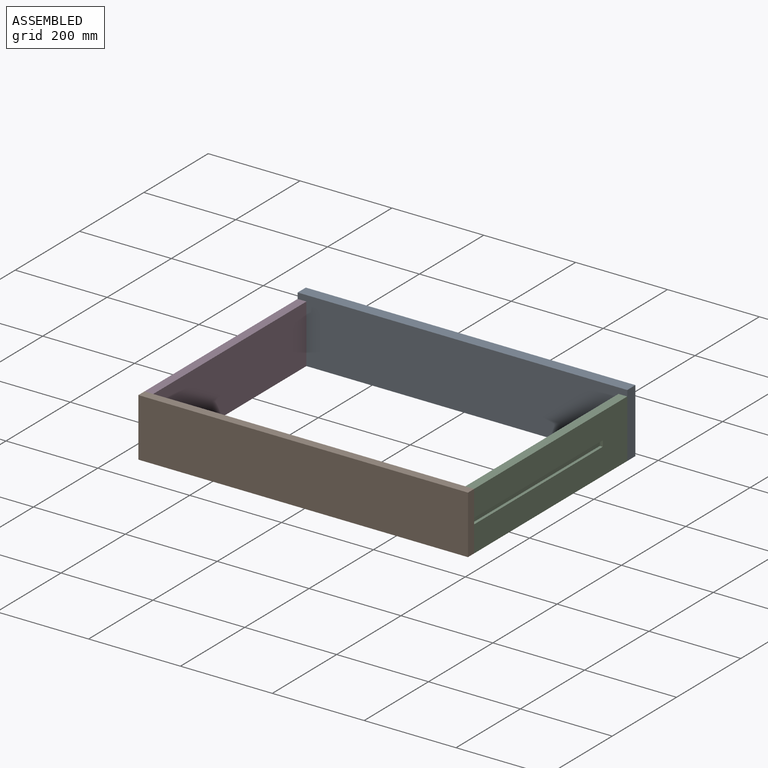
[diagram: assembled view]
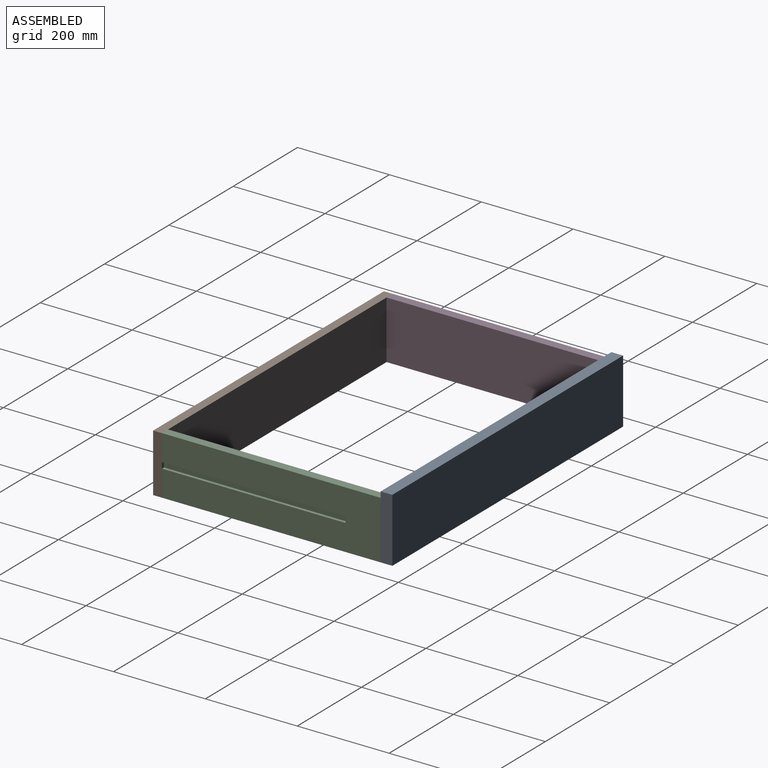
[diagram: assembled view, second angle]
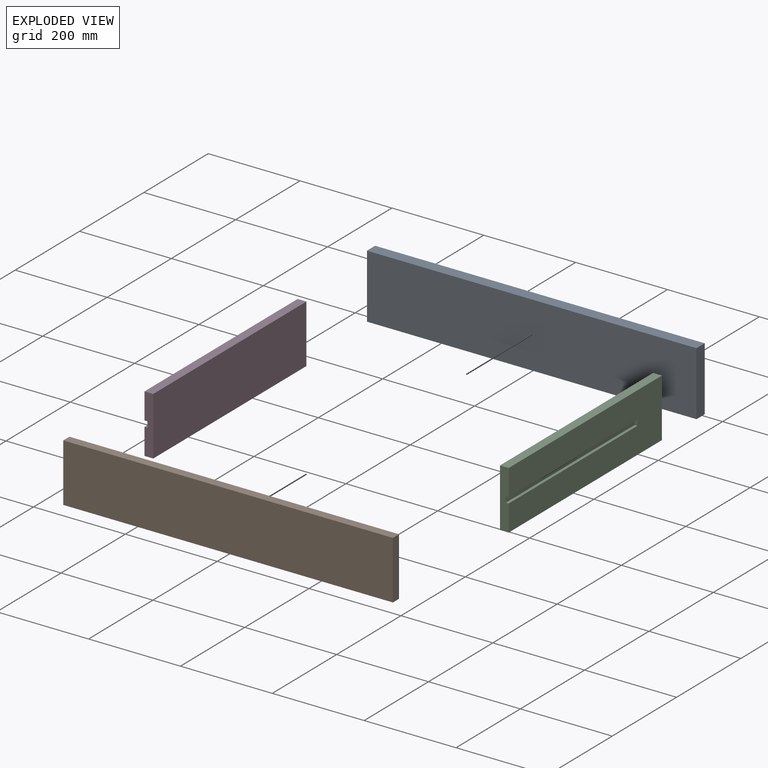
[diagram: exploded view]
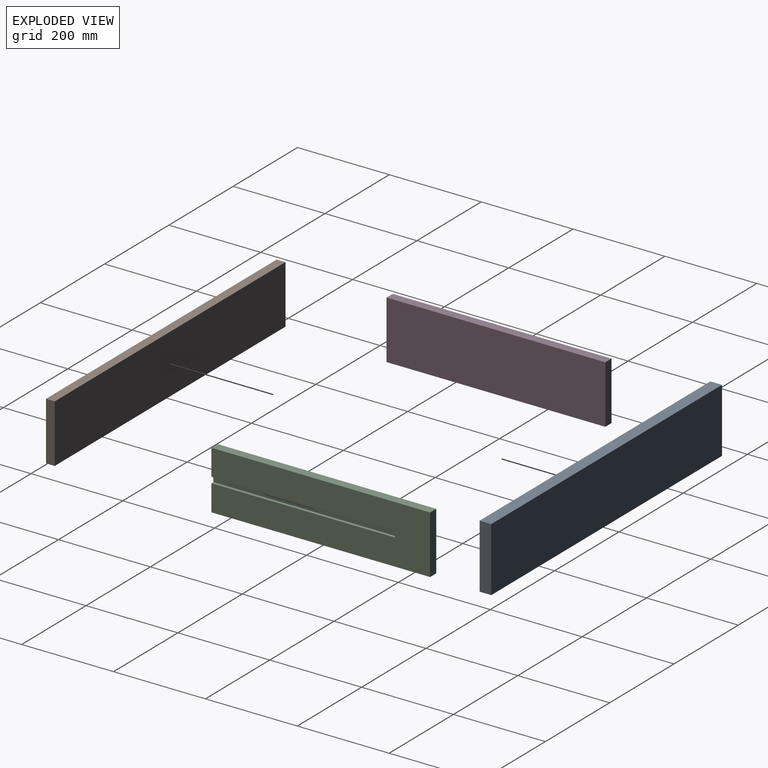
[diagram: exploded view, second angle]
ASSEMBLY  parts=4 mates=9
PART A: 6 faces, bbox 717.6x25.4x139.7 mm
  f0: plane 139.7x25.4mm, normal (-1,0,0), area 3548.4mm2, adj f1,f3,f4,f5
  f1: plane 717.55x25.4mm, normal (0,0,-1), area 18225.8mm2, adj f0,f2,f4,f5
  f2: plane 139.7x25.4mm, normal (1,0,0), area 3548.4mm2, adj f1,f3,f4,f5
  f3: plane 717.55x25.4mm, normal (0,0,1), area 18225.8mm2, adj f0,f2,f4,f5
  f4: plane 717.55x139.7mm, normal (0,1,0), area 100241.7mm2, adj f0,f1,f2,f3
  f5: plane 717.55x139.7mm, normal (0,-1,0), area 100241.7mm2, adj f0,f1,f2,f3
PART B: 6 faces, bbox 717.6x19.1x127 mm
  f0: plane 717.55x19.05mm, normal (0,0,-1), area 13669.3mm2, adj f1,f3,f4,f5
  f1: plane 127x19.05mm, normal (-1,0,0), area 2419.3mm2, adj f0,f2,f4,f5
  f2: plane 717.55x19.05mm, normal (0,0,1), area 13669.3mm2, adj f1,f3,f4,f5
  f3: plane 127x19.05mm, normal (1,0,0), area 2419.3mm2, adj f0,f2,f4,f5
  f4: plane 717.55x127mm, normal (0,1,0), area 91128.8mm2, adj f0,f1,f2,f3
  f5: plane 717.55x127mm, normal (0,-1,0), area 91128.8mm2, adj f0,f1,f2,f3
PART C: 10 faces, bbox 19.1x476.3x127 mm
  f0: plane 476.25x127mm, normal (1,0,0), area 55403.1mm2, adj f1,f2,f4,f5,f6,f7,f8
  f1: plane 127x19.05mm, normal (0,1,0), area 2338.7mm2, adj f0,f2,f3,f4,f6,f7,f9
  f2: plane 476.25x19.05mm, normal (0,0,-1), area 9072.6mm2, adj f0,f1,f3,f5
  f3: plane 476.25x127mm, normal (-1,0,0), area 60483.8mm2, adj f1,f2,f4,f5
  f4: plane 476.25x19.05mm, normal (0,0,1), area 9072.6mm2, adj f0,f1,f3,f5
  f5: plane 127x19.05mm, normal (0,-1,0), area 2419.4mm2, adj f0,f2,f3,f4
  f6: plane 400.05x6.35mm, normal (0,0,1), area 2540.3mm2, adj f0,f1,f8,f9
  f7: plane 400.05x6.35mm, normal (0,0,-1), area 2540.3mm2, adj f0,f1,f8,f9
  f8: plane 12.7x6.35mm, normal (0,1,0), area 80.6mm2, adj f0,f6,f7,f9
  f9: plane 400.05x12.7mm, normal (1,0,0), area 5080.6mm2, adj f1,f6,f7,f8
PART D: same geometry as C
PLACE A rot(axis=(-0.26,-0.09,0.96),0deg) t=(575.92,2310.69,384.82)mm
PLACE B rot(axis=(-0.26,-0.09,0.96),0deg) t=(575.92,1313.74,384.82)mm
PLACE C rot(axis=(1,0,0),180deg) t=(575.92,2399.64,175.27)mm
PLACE D rot(axis=(0,0,-1),180deg) t=(1452.22,2399.64,384.82)mm
MATE planar C.f1 <-> B.f4  axis (0,-1,0) through (1363.1,1866.22,280.04)mm
MATE planar C.f4 <-> B.f0  axis (0,0,-1) through (1363.32,2104.34,216.54)mm
MATE planar D.f0 <-> A.f0  axis (-1,0,0) through (655.3,2107.84,280.04)mm
MATE planar D.f4 <-> B.f2  axis (0,0,1) through (664.82,2104.34,343.54)mm
MATE planar C.f5 <-> A.f5  axis (0,1,0) through (1363.32,2342.47,280.04)mm
MATE planar C.f0 <-> B.f3  axis (1,0,0) through (1372.85,2066.24,273.69)mm
MATE planar C.f0 <-> A.f2  axis (1,0,0) through (1372.85,2107.84,280.04)mm
MATE planar B.f4 <-> D.f1  axis (0,1,0) through (1014.07,1866.22,280.04)mm
MATE planar A.f1 <-> D.f2  axis (0,0,-1) through (1014.07,2355.17,216.54)mm
